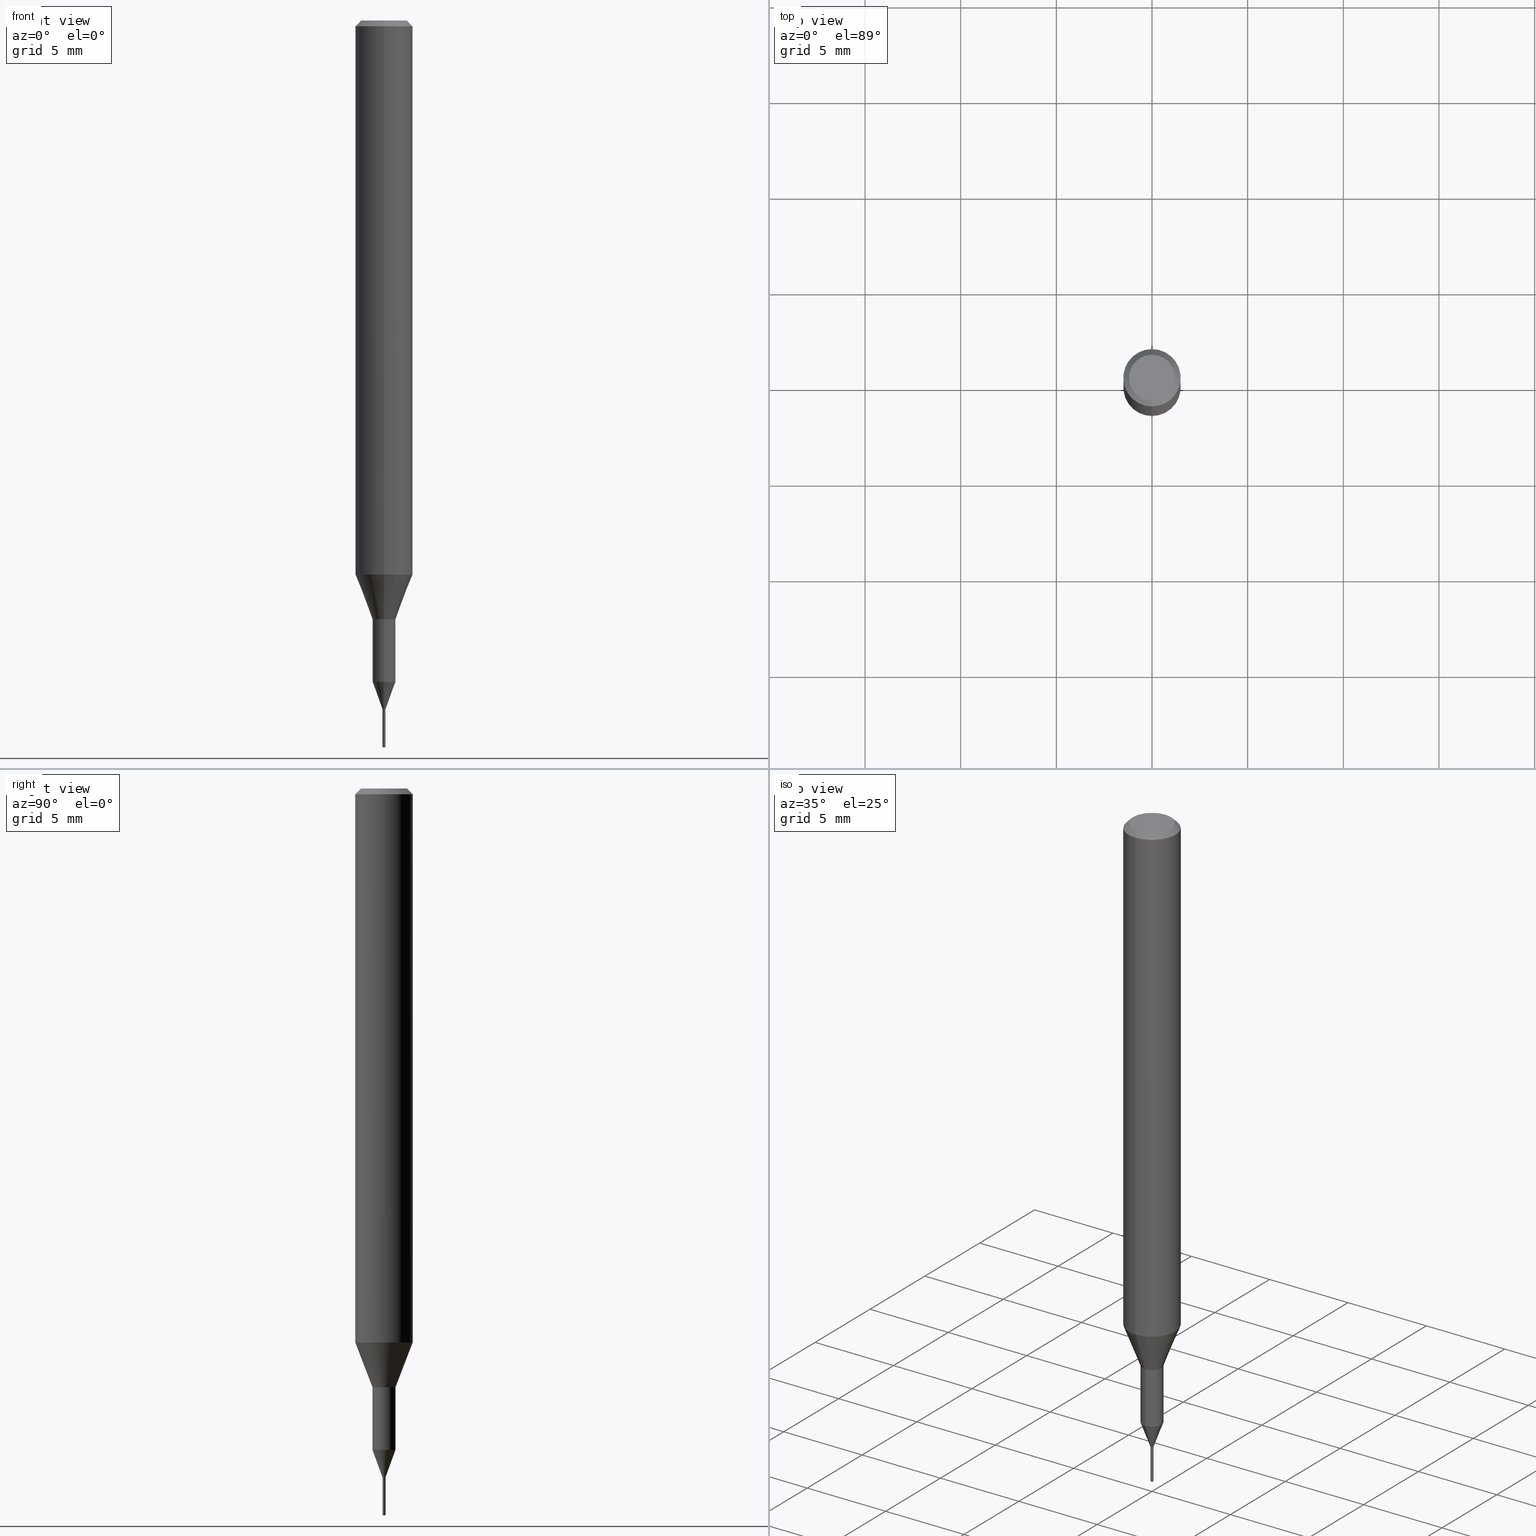
[diagram: canonical four-view strip — front | top / right | iso, engineering-drawing reading convention]
A machine part, canonical four-view strip (front | top / right | iso — engineering-drawing reading convention). The complete STEP part file that produces these views, byte-faithful:
ISO-10303-21;
HEADER;
FILE_DESCRIPTION(('no description'),'unknown implementation level');
FILE_NAME('C-UMD2016-020-Huellk.stp','  ',('CIMSOURCE GmbH'),('CADClick - KiM GmbH - www.kimweb.de'),'unknown preprocess','ACIS','unknown authorization');
FILE_SCHEMA(('automotive_design'));
ENDSEC;
DATA;
#1=MECHANICAL_DESIGN_GEOMETRIC_PRESENTATION_REPRESENTATION(' ',(#14,#15,#16,#17,#18,#19,#20,#21,#22,#23,#24,#25,#26,#27,#28,#29,#30,#31,#32,#33,#34,#35,#36,#37,#38,#39,#40,#41,#42,#43,#44,#45,#46,#47,#48,#49,#50,#51,#52,#53,#54,#55,#56,#57,#58,#59,#60,#61,#62,#63,#64,#65,#66,#67,#68,#69,#70,#71,#72,#73,#74,#75,#76,#77,#78,#79,#80,#81,#82,#83,#84,#85,#86,#87,#88,#89,#90,#91,#92),#10);
#2=PRODUCT_DEFINITION_CONTEXT('',#93,'design');
#3=APPLICATION_PROTOCOL_DEFINITION('INTERNATIONAL STANDARD','automotive_design',1994,#93);
#4=PRODUCT_CATEGORY_RELATIONSHIP('NONE','NONE',#94,#95);
#5=SHAPE_DEFINITION_REPRESENTATION(#96,#97);
#6=PRODUCT_DEFINITION_CONTEXT('',#98,'design');
#7=APPLICATION_PROTOCOL_DEFINITION('INTERNATIONAL STANDARD','automotive_design',1994,#98);
#8=PRODUCT_CATEGORY_RELATIONSHIP('NONE','NONE',#99,#100);
#9=SHAPE_DEFINITION_REPRESENTATION(#101,#102);
#10= (GEOMETRIC_REPRESENTATION_CONTEXT(3)GLOBAL_UNCERTAINTY_ASSIGNED_CONTEXT((#105))GLOBAL_UNIT_ASSIGNED_CONTEXT((#107,#108,#109))REPRESENTATION_CONTEXT('NONE','WORKSPACE'));
#14=STYLED_ITEM('',(#111),#112);
#15=STYLED_ITEM('',(#113),#114);
#16=STYLED_ITEM('',(#115),#116);
#17=STYLED_ITEM('',(#117),#118);
#18=STYLED_ITEM('',(#119),#120);
#19=STYLED_ITEM('',(#121),#122);
#20=STYLED_ITEM('',(#123),#124);
#21=STYLED_ITEM('',(#125),#126);
#22=STYLED_ITEM('',(#127),#128);
#23=STYLED_ITEM('',(#129),#130);
#24=STYLED_ITEM('',(#131),#132);
#25=STYLED_ITEM('',(#133),#134);
#26=STYLED_ITEM('',(#135),#136);
#27=STYLED_ITEM('',(#137),#138);
#28=STYLED_ITEM('',(#139),#140);
#29=STYLED_ITEM('',(#141),#142);
#30=STYLED_ITEM('',(#143),#144);
#31=STYLED_ITEM('',(#145),#146);
#32=STYLED_ITEM('',(#147),#148);
#33=STYLED_ITEM('',(#149),#150);
#34=STYLED_ITEM('',(#151),#152);
#35=STYLED_ITEM('',(#153),#154);
#36=STYLED_ITEM('',(#155),#156);
#37=STYLED_ITEM('',(#157),#158);
#38=STYLED_ITEM('',(#159),#160);
#39=STYLED_ITEM('',(#161),#162);
#40=STYLED_ITEM('',(#163),#164);
#41=STYLED_ITEM('',(#165),#166);
#42=STYLED_ITEM('',(#167),#168);
#43=STYLED_ITEM('',(#169),#170);
#44=STYLED_ITEM('',(#171),#172);
#45=STYLED_ITEM('',(#173),#174);
#46=STYLED_ITEM('',(#175),#176);
#47=STYLED_ITEM('',(#177),#178);
#48=STYLED_ITEM('',(#179),#180);
#49=STYLED_ITEM('',(#181),#182);
#50=STYLED_ITEM('',(#183),#184);
#51=STYLED_ITEM('',(#185),#186);
#52=STYLED_ITEM('',(#187),#188);
#53=STYLED_ITEM('',(#189),#190);
#54=STYLED_ITEM('',(#191),#192);
#55=STYLED_ITEM('',(#193),#194);
#56=STYLED_ITEM('',(#195),#196);
#57=STYLED_ITEM('',(#197),#198);
#58=STYLED_ITEM('',(#199),#200);
#59=STYLED_ITEM('',(#201),#202);
#60=STYLED_ITEM('',(#203),#204);
#61=STYLED_ITEM('',(#205),#206);
#62=STYLED_ITEM('',(#207),#208);
#63=STYLED_ITEM('',(#209),#210);
#64=STYLED_ITEM('',(#211),#212);
#65=STYLED_ITEM('',(#213),#214);
#66=STYLED_ITEM('',(#215),#216);
#67=STYLED_ITEM('',(#217),#218);
#68=STYLED_ITEM('',(#219),#220);
#69=STYLED_ITEM('',(#221),#222);
#70=STYLED_ITEM('',(#223),#224);
#71=STYLED_ITEM('',(#225),#226);
#72=STYLED_ITEM('',(#227),#228);
#73=STYLED_ITEM('',(#229),#230);
#74=STYLED_ITEM('',(#231),#232);
#75=STYLED_ITEM('',(#233),#234);
#76=STYLED_ITEM('',(#235),#236);
#77=STYLED_ITEM('',(#237),#238);
#78=STYLED_ITEM('',(#239),#240);
#79=STYLED_ITEM('',(#241),#242);
#80=STYLED_ITEM('',(#243),#244);
#81=STYLED_ITEM('',(#245),#246);
#82=STYLED_ITEM('',(#247),#248);
#83=STYLED_ITEM('',(#249),#250);
#84=STYLED_ITEM('',(#251),#252);
#85=STYLED_ITEM('',(#253),#254);
#86=STYLED_ITEM('',(#255),#256);
#87=STYLED_ITEM('',(#257),#258);
#88=STYLED_ITEM('',(#259),#260);
#89=STYLED_ITEM('',(#261),#262);
#90=STYLED_ITEM('',(#263),#264);
#91=STYLED_ITEM('',(#265),#266);
#92=STYLED_ITEM('',(#267),#268);
#93=APPLICATION_CONTEXT(' ');
#94=PRODUCT_CATEGORY('part','NONE');
#95=PRODUCT_RELATED_PRODUCT_CATEGORY('detail',' ',(#269));
#96=PRODUCT_DEFINITION_SHAPE('NONE','NONE',#270);
#97=ADVANCED_BREP_SHAPE_REPRESENTATION('1',(#158,#271),#10);
#98=APPLICATION_CONTEXT(' ');
#99=PRODUCT_CATEGORY('part','NONE');
#100=PRODUCT_RELATED_PRODUCT_CATEGORY('detail',' ',(#272));
#101=PRODUCT_DEFINITION_SHAPE('NONE','NONE',#273);
#102=ADVANCED_BREP_SHAPE_REPRESENTATION('2',(#242,#274),#10);
#105=UNCERTAINTY_MEASURE_WITH_UNIT(LENGTH_MEASURE(1.0E-006),#107,'','');
#107= (CONVERSION_BASED_UNIT('MILLIMETRE',#277)LENGTH_UNIT()NAMED_UNIT(#280));
#108= (NAMED_UNIT(#282)PLANE_ANGLE_UNIT()SI_UNIT($,.RADIAN.));
#109= (NAMED_UNIT(#282)SOLID_ANGLE_UNIT()SI_UNIT($,.STERADIAN.));
#111=PRESENTATION_STYLE_ASSIGNMENT((#288));
#112=ADVANCED_FACE('',(#289),#290,.T.);
#113=PRESENTATION_STYLE_ASSIGNMENT((#291));
#114=ADVANCED_FACE('',(#292),#293,.T.);
#115=PRESENTATION_STYLE_ASSIGNMENT((#294));
#116=EDGE_CURVE('',#192,#190,#295,.T.);
#117=PRESENTATION_STYLE_ASSIGNMENT((#296));
#118=ADVANCED_FACE('',(#297),#298,.T.);
#119=PRESENTATION_STYLE_ASSIGNMENT((#299));
#120=ADVANCED_FACE('',(#300),#301,.T.);
#121=PRESENTATION_STYLE_ASSIGNMENT((#302));
#122=EDGE_CURVE('',#226,#192,#303,.T.);
#123=PRESENTATION_STYLE_ASSIGNMENT((#304));
#124=EDGE_CURVE('',#170,#248,#305,.T.);
#125=PRESENTATION_STYLE_ASSIGNMENT((#306));
#126=VERTEX_POINT('',#307);
#127=PRESENTATION_STYLE_ASSIGNMENT((#308));
#128=VERTEX_POINT('',#309);
#129=PRESENTATION_STYLE_ASSIGNMENT((#310));
#130=EDGE_CURVE('',#170,#268,#311,.T.);
#131=PRESENTATION_STYLE_ASSIGNMENT((#312));
#132=EDGE_CURVE('',#250,#190,#313,.T.);
#133=PRESENTATION_STYLE_ASSIGNMENT((#314));
#134=VERTEX_POINT('',#315);
#135=PRESENTATION_STYLE_ASSIGNMENT((#316));
#136=ADVANCED_FACE('',(#317),#318,.T.);
#137=PRESENTATION_STYLE_ASSIGNMENT((#319));
#138=VERTEX_POINT('',#320);
#139=PRESENTATION_STYLE_ASSIGNMENT((#321));
#140=VERTEX_POINT('',#322);
#141=PRESENTATION_STYLE_ASSIGNMENT((#323));
#142=ADVANCED_FACE('',(#324),#325,.T.);
#143=PRESENTATION_STYLE_ASSIGNMENT((#326));
#144=EDGE_CURVE('',#252,#232,#327,.T.);
#145=PRESENTATION_STYLE_ASSIGNMENT((#328));
#146=EDGE_CURVE('',#182,#218,#329,.T.);
#147=PRESENTATION_STYLE_ASSIGNMENT((#330));
#148=EDGE_CURVE('',#134,#138,#331,.T.);
#149=PRESENTATION_STYLE_ASSIGNMENT((#332));
#150=EDGE_CURVE('',#140,#218,#333,.T.);
#151=PRESENTATION_STYLE_ASSIGNMENT((#334));
#152=EDGE_CURVE('',#232,#252,#335,.T.);
#153=PRESENTATION_STYLE_ASSIGNMENT((#336));
#154=EDGE_CURVE('',#252,#140,#337,.T.);
#155=PRESENTATION_STYLE_ASSIGNMENT((#338));
#156=ADVANCED_FACE('',(#339),#340,.T.);
#157=PRESENTATION_STYLE_ASSIGNMENT((#341));
#158=MANIFOLD_SOLID_BREP('1',#342);
#159=PRESENTATION_STYLE_ASSIGNMENT((#343));
#160=ADVANCED_FACE('',(#344),#345,.T.);
#161=PRESENTATION_STYLE_ASSIGNMENT((#346));
#162=ADVANCED_FACE('',(#347),#348,.T.);
#163=PRESENTATION_STYLE_ASSIGNMENT((#349));
#164=EDGE_CURVE('',#190,#192,#350,.T.);
#165=PRESENTATION_STYLE_ASSIGNMENT((#351));
#166=EDGE_CURVE('',#126,#250,#352,.T.);
#167=PRESENTATION_STYLE_ASSIGNMENT((#353));
#168=EDGE_CURVE('',#224,#254,#354,.T.);
#169=PRESENTATION_STYLE_ASSIGNMENT((#355));
#170=VERTEX_POINT('',#356);
#171=PRESENTATION_STYLE_ASSIGNMENT((#357));
#172=EDGE_CURVE('',#182,#262,#358,.T.);
#173=PRESENTATION_STYLE_ASSIGNMENT((#359));
#174=EDGE_CURVE('',#254,#252,#360,.T.);
#175=PRESENTATION_STYLE_ASSIGNMENT((#361));
#176=EDGE_CURVE('',#238,#134,#362,.T.);
#177=PRESENTATION_STYLE_ASSIGNMENT((#363));
#178=VERTEX_POINT('',#364);
#179=PRESENTATION_STYLE_ASSIGNMENT((#365));
#180=EDGE_CURVE('',#254,#224,#366,.T.);
#181=PRESENTATION_STYLE_ASSIGNMENT((#367));
#182=VERTEX_POINT('',#368);
#183=PRESENTATION_STYLE_ASSIGNMENT((#369));
#184=EDGE_CURVE('',#178,#226,#370,.T.);
#185=PRESENTATION_STYLE_ASSIGNMENT((#371));
#186=ADVANCED_FACE('',(#372),#373,.T.);
#187=PRESENTATION_STYLE_ASSIGNMENT((#374));
#188=ADVANCED_FACE('',(#375,#376),#377,.T.);
#189=PRESENTATION_STYLE_ASSIGNMENT((#378));
#190=VERTEX_POINT('',#379);
#191=PRESENTATION_STYLE_ASSIGNMENT((#380));
#192=VERTEX_POINT('',#381);
#193=PRESENTATION_STYLE_ASSIGNMENT((#382));
#194=ADVANCED_FACE('',(#383),#384,.T.);
#195=PRESENTATION_STYLE_ASSIGNMENT((#385));
#196=ADVANCED_FACE('',(#386),#387,.T.);
#197=PRESENTATION_STYLE_ASSIGNMENT((#388));
#198=EDGE_CURVE('',#262,#182,#389,.T.);
#199=PRESENTATION_STYLE_ASSIGNMENT((#390));
#200=EDGE_CURVE('',#138,#238,#391,.T.);
#201=PRESENTATION_STYLE_ASSIGNMENT((#392));
#202=ADVANCED_FACE('',(#393),#394,.T.);
#203=PRESENTATION_STYLE_ASSIGNMENT((#395));
#204=EDGE_CURVE('',#218,#140,#396,.T.);
#205=PRESENTATION_STYLE_ASSIGNMENT((#397));
#206=EDGE_CURVE('',#140,#262,#398,.T.);
#207=PRESENTATION_STYLE_ASSIGNMENT((#399));
#208=EDGE_CURVE('',#226,#178,#400,.T.);
#209=PRESENTATION_STYLE_ASSIGNMENT((#401));
#210=ADVANCED_FACE('',(#402),#403,.T.);
#211=PRESENTATION_STYLE_ASSIGNMENT((#404));
#212=EDGE_CURVE('',#128,#268,#405,.T.);
#213=PRESENTATION_STYLE_ASSIGNMENT((#406));
#214=EDGE_CURVE('',#250,#126,#407,.T.);
#215=PRESENTATION_STYLE_ASSIGNMENT((#408));
#216=EDGE_CURVE('',#128,#248,#409,.T.);
#217=PRESENTATION_STYLE_ASSIGNMENT((#410));
#218=VERTEX_POINT('',#411);
#219=PRESENTATION_STYLE_ASSIGNMENT((#412));
#220=EDGE_CURVE('',#248,#138,#413,.T.);
#221=PRESENTATION_STYLE_ASSIGNMENT((#414));
#222=EDGE_CURVE('',#134,#128,#415,.T.);
#223=PRESENTATION_STYLE_ASSIGNMENT((#416));
#224=VERTEX_POINT('',#417);
#225=PRESENTATION_STYLE_ASSIGNMENT((#418));
#226=VERTEX_POINT('',#419);
#227=PRESENTATION_STYLE_ASSIGNMENT((#420));
#228=ADVANCED_FACE('',(#421),#422,.T.);
#229=PRESENTATION_STYLE_ASSIGNMENT((#423));
#230=EDGE_CURVE('',#190,#178,#424,.T.);
#231=PRESENTATION_STYLE_ASSIGNMENT((#425));
#232=VERTEX_POINT('',#426);
#233=PRESENTATION_STYLE_ASSIGNMENT((#427));
#234=EDGE_CURVE('',#232,#224,#428,.T.);
#235=PRESENTATION_STYLE_ASSIGNMENT((#429));
#236=ADVANCED_FACE('',(#430),#431,.T.);
#237=PRESENTATION_STYLE_ASSIGNMENT((#432));
#238=VERTEX_POINT('',#433);
#239=PRESENTATION_STYLE_ASSIGNMENT((#434));
#240=EDGE_CURVE('',#138,#134,#435,.T.);
#241=PRESENTATION_STYLE_ASSIGNMENT((#436));
#242=MANIFOLD_SOLID_BREP('2',#437);
#243=PRESENTATION_STYLE_ASSIGNMENT((#438));
#244=EDGE_CURVE('',#248,#128,#439,.T.);
#245=PRESENTATION_STYLE_ASSIGNMENT((#440));
#246=EDGE_CURVE('',#192,#126,#441,.T.);
#247=PRESENTATION_STYLE_ASSIGNMENT((#442));
#248=VERTEX_POINT('',#443);
#249=PRESENTATION_STYLE_ASSIGNMENT((#444));
#250=VERTEX_POINT('',#445);
#251=PRESENTATION_STYLE_ASSIGNMENT((#446));
#252=VERTEX_POINT('',#447);
#253=PRESENTATION_STYLE_ASSIGNMENT((#448));
#254=VERTEX_POINT('',#449);
#255=PRESENTATION_STYLE_ASSIGNMENT((#450));
#256=ADVANCED_FACE('',(#451),#452,.T.);
#257=PRESENTATION_STYLE_ASSIGNMENT((#453));
#258=EDGE_CURVE('',#268,#170,#454,.T.);
#259=PRESENTATION_STYLE_ASSIGNMENT((#455));
#260=ADVANCED_FACE('',(#456),#457,.T.);
#261=PRESENTATION_STYLE_ASSIGNMENT((#458));
#262=VERTEX_POINT('',#459);
#263=PRESENTATION_STYLE_ASSIGNMENT((#460));
#264=ADVANCED_FACE('',(#461),#462,.T.);
#265=PRESENTATION_STYLE_ASSIGNMENT((#463));
#266=EDGE_CURVE('',#218,#232,#464,.T.);
#267=PRESENTATION_STYLE_ASSIGNMENT((#465));
#268=VERTEX_POINT('',#466);
#269=PRODUCT('1','1','PART-1-DESC',(#467));
#270=PRODUCT_DEFINITION('NONE','NONE',#468,#2);
#271=AXIS2_PLACEMENT_3D('',#469,#470,#471);
#272=PRODUCT('2','2','PART-2-DESC',(#472));
#273=PRODUCT_DEFINITION('NONE','NONE',#473,#6);
#274=AXIS2_PLACEMENT_3D('',#474,#475,#476);
#277=LENGTH_MEASURE_WITH_UNIT(LENGTH_MEASURE(1.0),#477);
#280=DIMENSIONAL_EXPONENTS(1.0,0.0,0.0,0.0,0.0,0.0,0.0);
#282=DIMENSIONAL_EXPONENTS(0.0,0.0,0.0,0.0,0.0,0.0,0.0);
#288=SURFACE_STYLE_USAGE(.BOTH.,#478);
#289=FACE_OUTER_BOUND('',#479,.T.);
#290=PLANE('',#480);
#291=SURFACE_STYLE_USAGE(.BOTH.,#481);
#292=FACE_OUTER_BOUND('',#482,.T.);
#293=CONICAL_SURFACE('',#483,0.04,1.30899688528326);
#294=CURVE_STYLE('',#484,POSITIVE_LENGTH_MEASURE(1.0E-006),#485);
#295=CIRCLE('',#486,0.59995);
#296=SURFACE_STYLE_USAGE(.BOTH.,#487);
#297=FACE_OUTER_BOUND('',#488,.T.);
#298=CONICAL_SURFACE('',#489,1.05,0.366459241971866);
#299=SURFACE_STYLE_USAGE(.BOTH.,#490);
#300=FACE_OUTER_BOUND('',#491,.T.);
#301=CYLINDRICAL_SURFACE('',#492,1.5);
#302=CURVE_STYLE('',#493,POSITIVE_LENGTH_MEASURE(1.0E-006),#494);
#303=LINE('',#495,#496);
#304=CURVE_STYLE('',#497,POSITIVE_LENGTH_MEASURE(1.0E-006),#498);
#305=LINE('',#499,#500);
#306=POINT_STYLE(' ',#501,POSITIVE_LENGTH_MEASURE(1.0E-006),#502);
#307=CARTESIAN_POINT('',(7.34702581975735E-017,-0.59995,-31.3));
#308=POINT_STYLE(' ',#503,POSITIVE_LENGTH_MEASURE(1.0E-006),#504);
#309=CARTESIAN_POINT('',(0.08,9.79685083057902E-018,-36.0));
#310=CURVE_STYLE('',#505,POSITIVE_LENGTH_MEASURE(1.0E-006),#506);
#311=CIRCLE('',#507,0.0810363890832749);
#312=CURVE_STYLE('',#508,POSITIVE_LENGTH_MEASURE(1.0E-006),#509);
#313=LINE('',#510,#511);
#314=POINT_STYLE(' ',#512,POSITIVE_LENGTH_MEASURE(1.0E-006),#513);
#315=CARTESIAN_POINT('',(0.08,9.79685083057902E-018,-37.97856406));
#316=SURFACE_STYLE_USAGE(.BOTH.,#514);
#317=FACE_OUTER_BOUND('',#515,.T.);
#318=CYLINDRICAL_SURFACE('',#516,0.08);
#319=POINT_STYLE(' ',#517,POSITIVE_LENGTH_MEASURE(1.0E-006),#518);
#320=CARTESIAN_POINT('',(-0.08,0.0,-37.97856406));
#321=POINT_STYLE(' ',#519,POSITIVE_LENGTH_MEASURE(1.0E-006),#520);
#322=CARTESIAN_POINT('',(0.0,1.5,-28.955));
#323=SURFACE_STYLE_USAGE(.BOTH.,#521);
#324=FACE_OUTER_BOUND('',#522,.T.);
#325=CONICAL_SURFACE('',#523,0.339993192792162,0.348964836873611);
#326=CURVE_STYLE('',#524,POSITIVE_LENGTH_MEASURE(1.0E-006),#525);
#327=CIRCLE('',#526,1.5);
#328=CURVE_STYLE('',#527,POSITIVE_LENGTH_MEASURE(1.0E-006),#528);
#329=LINE('',#529,#530);
#330=CURVE_STYLE('',#531,POSITIVE_LENGTH_MEASURE(1.0E-006),#532);
#331=CIRCLE('',#533,0.08);
#332=CURVE_STYLE('',#534,POSITIVE_LENGTH_MEASURE(1.0E-006),#535);
#333=CIRCLE('',#536,1.5);
#334=CURVE_STYLE('',#537,POSITIVE_LENGTH_MEASURE(1.0E-006),#538);
#335=CIRCLE('',#539,1.5);
#336=CURVE_STYLE('',#540,POSITIVE_LENGTH_MEASURE(1.0E-006),#541);
#337=LINE('',#542,#543);
#338=SURFACE_STYLE_USAGE(.BOTH.,#544);
#339=FACE_OUTER_BOUND('',#545,.T.);
#340=CONICAL_SURFACE('',#546,0.04,1.30899688528326);
#341=SURFACE_STYLE_USAGE(.BOTH.,#547);
#342=CLOSED_SHELL('',(#142,#210,#118,#120,#160,#112,#186,#260,#196,#188,#162,#228,#264));
#343=SURFACE_STYLE_USAGE(.BOTH.,#548);
#344=FACE_OUTER_BOUND('',#549,.T.);
#345=CONICAL_SURFACE('',#550,1.35,0.785398163397447);
#346=SURFACE_STYLE_USAGE(.BOTH.,#551);
#347=FACE_OUTER_BOUND('',#552,.T.);
#348=CYLINDRICAL_SURFACE('',#553,0.59995);
#349=CURVE_STYLE('',#554,POSITIVE_LENGTH_MEASURE(1.0E-006),#555);
#350=CIRCLE('',#556,0.59995);
#351=CURVE_STYLE('',#557,POSITIVE_LENGTH_MEASURE(1.0E-006),#558);
#352=CIRCLE('',#559,0.59995);
#353=CURVE_STYLE('',#560,POSITIVE_LENGTH_MEASURE(1.0E-006),#561);
#354=CIRCLE('',#562,1.2);
#355=POINT_STYLE(' ',#563,POSITIVE_LENGTH_MEASURE(1.0E-006),#564);
#356=CARTESIAN_POINT('',(-0.0810363890832749,0.0,-35.9999));
#357=CURVE_STYLE('',#565,POSITIVE_LENGTH_MEASURE(1.0E-006),#566);
#358=CIRCLE('',#567,0.6);
#359=CURVE_STYLE('',#568,POSITIVE_LENGTH_MEASURE(1.0E-006),#569);
#360=LINE('',#570,#571);
#361=CURVE_STYLE('',#572,POSITIVE_LENGTH_MEASURE(1.0E-006),#573);
#362=LINE('',#574,#575);
#363=POINT_STYLE(' ',#576,POSITIVE_LENGTH_MEASURE(1.0E-006),#577);
#364=CARTESIAN_POINT('',(0.0,0.0800363855843246,-35.9999));
#365=CURVE_STYLE('',#578,POSITIVE_LENGTH_MEASURE(1.0E-006),#579);
#366=CIRCLE('',#580,1.2);
#367=POINT_STYLE(' ',#581,POSITIVE_LENGTH_MEASURE(1.0E-006),#582);
#368=CARTESIAN_POINT('',(7.34763812293426E-017,-0.6,-31.3));
#369=CURVE_STYLE('',#583,POSITIVE_LENGTH_MEASURE(1.0E-006),#584);
#370=CIRCLE('',#585,0.0800363855843246);
#371=SURFACE_STYLE_USAGE(.BOTH.,#586);
#372=FACE_OUTER_BOUND('',#587,.T.);
#373=CONICAL_SURFACE('',#588,1.35,0.785398163397447);
#374=SURFACE_STYLE_USAGE(.BOTH.,#589);
#375=FACE_BOUND('',#590,.T.);
#376=FACE_OUTER_BOUND('',#591,.T.);
#377=PLANE('',#592);
#378=POINT_STYLE(' ',#593,POSITIVE_LENGTH_MEASURE(1.0E-006),#594);
#379=CARTESIAN_POINT('',(0.0,0.59995,-34.571));
#380=POINT_STYLE(' ',#595,POSITIVE_LENGTH_MEASURE(1.0E-006),#596);
#381=CARTESIAN_POINT('',(7.34702581975735E-017,-0.59995,-34.571));
#382=SURFACE_STYLE_USAGE(.BOTH.,#597);
#383=FACE_OUTER_BOUND('',#598,.T.);
#384=CYLINDRICAL_SURFACE('',#599,0.08);
#385=SURFACE_STYLE_USAGE(.BOTH.,#600);
#386=FACE_OUTER_BOUND('',#601,.T.);
#387=CONICAL_SURFACE('',#602,1.05,0.366459241971866);
#388=CURVE_STYLE('',#603,POSITIVE_LENGTH_MEASURE(1.0E-006),#604);
#389=CIRCLE('',#605,0.6);
#390=CURVE_STYLE('',#606,POSITIVE_LENGTH_MEASURE(1.0E-006),#607);
#391=LINE('',#608,#609);
#392=SURFACE_STYLE_USAGE(.BOTH.,#610);
#393=FACE_OUTER_BOUND('',#611,.T.);
#394=CONICAL_SURFACE('',#612,0.0805181945416374,1.4746052465728);
#395=CURVE_STYLE('',#613,POSITIVE_LENGTH_MEASURE(1.0E-006),#614);
#396=CIRCLE('',#615,1.5);
#397=CURVE_STYLE('',#616,POSITIVE_LENGTH_MEASURE(1.0E-006),#617);
#398=LINE('',#618,#619);
#399=CURVE_STYLE('',#620,POSITIVE_LENGTH_MEASURE(1.0E-006),#621);
#400=CIRCLE('',#622,0.0800363855843246);
#401=SURFACE_STYLE_USAGE(.BOTH.,#623);
#402=FACE_OUTER_BOUND('',#624,.T.);
#403=CYLINDRICAL_SURFACE('',#625,0.59995);
#404=CURVE_STYLE('',#626,POSITIVE_LENGTH_MEASURE(1.0E-006),#627);
#405=LINE('',#628,#629);
#406=CURVE_STYLE('',#630,POSITIVE_LENGTH_MEASURE(1.0E-006),#631);
#407=CIRCLE('',#632,0.59995);
#408=CURVE_STYLE('',#633,POSITIVE_LENGTH_MEASURE(1.0E-006),#634);
#409=CIRCLE('',#635,0.08);
#410=POINT_STYLE(' ',#636,POSITIVE_LENGTH_MEASURE(1.0E-006),#637);
#411=CARTESIAN_POINT('',(1.83690953073357E-016,-1.5,-28.955));
#412=CURVE_STYLE('',#638,POSITIVE_LENGTH_MEASURE(1.0E-006),#639);
#413=LINE('',#640,#641);
#414=CURVE_STYLE('',#642,POSITIVE_LENGTH_MEASURE(1.0E-006),#643);
#415=LINE('',#644,#645);
#416=POINT_STYLE(' ',#646,POSITIVE_LENGTH_MEASURE(1.0E-006),#647);
#417=CARTESIAN_POINT('',(1.46952762458685E-016,-1.2,0.0));
#418=POINT_STYLE(' ',#648,POSITIVE_LENGTH_MEASURE(1.0E-006),#649);
#419=CARTESIAN_POINT('',(9.80130663235416E-018,-0.0800363855843246,-35.9999));
#420=SURFACE_STYLE_USAGE(.BOTH.,#650);
#421=FACE_OUTER_BOUND('',#651,.T.);
#422=CONICAL_SURFACE('',#652,0.339993192792162,0.348964836873611);
#423=CURVE_STYLE('',#653,POSITIVE_LENGTH_MEASURE(1.0E-006),#654);
#424=LINE('',#655,#656);
#425=POINT_STYLE(' ',#657,POSITIVE_LENGTH_MEASURE(1.0E-006),#658);
#426=CARTESIAN_POINT('',(1.83690953073357E-016,-1.5,-0.300000000000001));
#427=CURVE_STYLE('',#659,POSITIVE_LENGTH_MEASURE(1.0E-006),#660);
#428=LINE('',#661,#662);
#429=SURFACE_STYLE_USAGE(.BOTH.,#663);
#430=FACE_OUTER_BOUND('',#664,.T.);
#431=PLANE('',#665);
#432=POINT_STYLE(' ',#666,POSITIVE_LENGTH_MEASURE(1.0E-006),#667);
#433=CARTESIAN_POINT('',(0.0,0.0,-38.0));
#434=CURVE_STYLE('',#668,POSITIVE_LENGTH_MEASURE(1.0E-006),#669);
#435=CIRCLE('',#670,0.08);
#436=SURFACE_STYLE_USAGE(.BOTH.,#671);
#437=CLOSED_SHELL('',(#156,#194,#256,#236,#202,#136,#114));
#438=CURVE_STYLE('',#672,POSITIVE_LENGTH_MEASURE(1.0E-006),#673);
#439=CIRCLE('',#674,0.08);
#440=CURVE_STYLE('',#675,POSITIVE_LENGTH_MEASURE(1.0E-006),#676);
#441=LINE('',#677,#678);
#442=POINT_STYLE(' ',#679,POSITIVE_LENGTH_MEASURE(1.0E-006),#680);
#443=CARTESIAN_POINT('',(-0.08,0.0,-36.0));
#444=POINT_STYLE(' ',#681,POSITIVE_LENGTH_MEASURE(1.0E-006),#682);
#445=CARTESIAN_POINT('',(0.0,0.59995,-31.3));
#446=POINT_STYLE(' ',#683,POSITIVE_LENGTH_MEASURE(1.0E-006),#684);
#447=CARTESIAN_POINT('',(0.0,1.5,-0.300000000000001));
#448=POINT_STYLE(' ',#685,POSITIVE_LENGTH_MEASURE(1.0E-006),#686);
#449=CARTESIAN_POINT('',(0.0,1.2,0.0));
#450=SURFACE_STYLE_USAGE(.BOTH.,#687);
#451=FACE_OUTER_BOUND('',#688,.T.);
#452=CONICAL_SURFACE('',#689,0.0805181945416374,1.4746052465728);
#453=CURVE_STYLE('',#690,POSITIVE_LENGTH_MEASURE(1.0E-006),#691);
#454=CIRCLE('',#692,0.0810363890832749);
#455=SURFACE_STYLE_USAGE(.BOTH.,#693);
#456=FACE_OUTER_BOUND('',#694,.T.);
#457=CYLINDRICAL_SURFACE('',#695,1.5);
#458=POINT_STYLE(' ',#696,POSITIVE_LENGTH_MEASURE(1.0E-006),#697);
#459=CARTESIAN_POINT('',(0.0,0.6,-31.3));
#460=SURFACE_STYLE_USAGE(.BOTH.,#698);
#461=FACE_OUTER_BOUND('',#699,.T.);
#462=PLANE('',#700);
#463=CURVE_STYLE('',#701,POSITIVE_LENGTH_MEASURE(1.0E-006),#702);
#464=LINE('',#703,#704);
#465=POINT_STYLE(' ',#705,POSITIVE_LENGTH_MEASURE(1.0E-006),#706);
#466=CARTESIAN_POINT('',(0.0810363890832749,9.92376769622008E-018,-35.9999));
#467=PRODUCT_CONTEXT('',#93,'mechanical');
#468=PRODUCT_DEFINITION_FORMATION_WITH_SPECIFIED_SOURCE(' ','NONE',#269,.NOT_KNOWN.);
#469=CARTESIAN_POINT('',(0.0,0.0,0.0));
#470=DIRECTION('',(0.0,0.0,1.0));
#471=DIRECTION('',(1.0,0.0,0.0));
#472=PRODUCT_CONTEXT('',#98,'mechanical');
#473=PRODUCT_DEFINITION_FORMATION_WITH_SPECIFIED_SOURCE(' ','NONE',#272,.NOT_KNOWN.);
#474=CARTESIAN_POINT('',(0.0,0.0,0.0));
#475=DIRECTION('',(0.0,0.0,1.0));
#476=DIRECTION('',(1.0,0.0,0.0));
#477= (NAMED_UNIT(#280)LENGTH_UNIT()SI_UNIT(.MILLI.,.METRE.));
#478=SURFACE_SIDE_STYLE('',(#708));
#479=EDGE_LOOP('',(#709,#710));
#480=AXIS2_PLACEMENT_3D('',#711,#712,#713);
#481=SURFACE_SIDE_STYLE('',(#714));
#482=EDGE_LOOP('',(#715,#716,#717));
#483=AXIS2_PLACEMENT_3D('',#718,#719,#720);
#484=DRAUGHTING_PRE_DEFINED_CURVE_FONT('continuous');
#485=COLOUR_RGB('',0.498039215803146,0.498039215803146,0.498039215803146);
#486=AXIS2_PLACEMENT_3D('',#721,#722,#723);
#487=SURFACE_SIDE_STYLE('',(#724));
#488=EDGE_LOOP('',(#725,#726,#727,#728));
#489=AXIS2_PLACEMENT_3D('',#729,#730,#731);
#490=SURFACE_SIDE_STYLE('',(#732));
#491=EDGE_LOOP('',(#733,#734,#735,#736));
#492=AXIS2_PLACEMENT_3D('',#737,#738,#739);
#493=DRAUGHTING_PRE_DEFINED_CURVE_FONT('continuous');
#494=COLOUR_RGB('',0.498039215803146,0.498039215803146,0.498039215803146);
#495=CARTESIAN_POINT('',(4.16357824149638E-017,-0.339993192792162,-35.28545));
#496=VECTOR('',#740,1.0);
#497=DRAUGHTING_PRE_DEFINED_CURVE_FONT('continuous');
#498=COLOUR_RGB('',0.800000011920929,0.800000011920929,0.800000011920929);
#499=CARTESIAN_POINT('',(-0.0805181945416374,-9.86030926339955E-018,-35.99995));
#500=VECTOR('',#741,1.0);
#501=PRE_DEFINED_MARKER('');
#502=COLOUR_RGB('',0.498039215803146,0.498039215803146,0.498039215803146);
#503=PRE_DEFINED_MARKER('');
#504=COLOUR_RGB('',0.800000011920929,0.800000011920929,0.800000011920929);
#505=DRAUGHTING_PRE_DEFINED_CURVE_FONT('continuous');
#506=COLOUR_RGB('',0.800000011920929,0.800000011920929,0.800000011920929);
#507=AXIS2_PLACEMENT_3D('',#742,#743,#744);
#508=DRAUGHTING_PRE_DEFINED_CURVE_FONT('continuous');
#509=COLOUR_RGB('',0.498039215803146,0.498039215803146,0.498039215803146);
#510=CARTESIAN_POINT('',(-7.34702581975735E-017,0.59995,-32.9355));
#511=VECTOR('',#745,1.0);
#512=PRE_DEFINED_MARKER('');
#513=COLOUR_RGB('',0.800000011920929,0.800000011920929,0.800000011920929);
#514=SURFACE_SIDE_STYLE('',(#746));
#515=EDGE_LOOP('',(#747,#748,#749,#750));
#516=AXIS2_PLACEMENT_3D('',#751,#752,#753);
#517=PRE_DEFINED_MARKER('');
#518=COLOUR_RGB('',0.800000011920929,0.800000011920929,0.800000011920929);
#519=PRE_DEFINED_MARKER('');
#520=COLOUR_RGB('',0.498039215803146,0.498039215803146,0.498039215803146);
#521=SURFACE_SIDE_STYLE('',(#754));
#522=EDGE_LOOP('',(#755,#756,#757,#758));
#523=AXIS2_PLACEMENT_3D('',#759,#760,#761);
#524=DRAUGHTING_PRE_DEFINED_CURVE_FONT('continuous');
#525=COLOUR_RGB('',0.498039215803146,0.498039215803146,0.498039215803146);
#526=AXIS2_PLACEMENT_3D('',#762,#763,#764);
#527=DRAUGHTING_PRE_DEFINED_CURVE_FONT('continuous');
#528=COLOUR_RGB('',0.498039215803146,0.498039215803146,0.498039215803146);
#529=CARTESIAN_POINT('',(1.2858366715135E-016,-1.05,-30.1275));
#530=VECTOR('',#765,1.0);
#531=DRAUGHTING_PRE_DEFINED_CURVE_FONT('continuous');
#532=COLOUR_RGB('',0.800000011920929,0.800000011920929,0.800000011920929);
#533=AXIS2_PLACEMENT_3D('',#766,#767,#768);
#534=DRAUGHTING_PRE_DEFINED_CURVE_FONT('continuous');
#535=COLOUR_RGB('',0.498039215803146,0.498039215803146,0.498039215803146);
#536=AXIS2_PLACEMENT_3D('',#769,#770,#771);
#537=DRAUGHTING_PRE_DEFINED_CURVE_FONT('continuous');
#538=COLOUR_RGB('',0.498039215803146,0.498039215803146,0.498039215803146);
#539=AXIS2_PLACEMENT_3D('',#772,#773,#774);
#540=DRAUGHTING_PRE_DEFINED_CURVE_FONT('continuous');
#541=COLOUR_RGB('',0.498039215803146,0.498039215803146,0.498039215803146);
#542=CARTESIAN_POINT('',(-1.83690953073357E-016,1.5,-14.6275));
#543=VECTOR('',#775,1.0);
#544=SURFACE_SIDE_STYLE('',(#776));
#545=EDGE_LOOP('',(#777,#778,#779));
#546=AXIS2_PLACEMENT_3D('',#780,#781,#782);
#547=SURFACE_SIDE_STYLE('',(#783));
#548=SURFACE_SIDE_STYLE('',(#784));
#549=EDGE_LOOP('',(#785,#786,#787,#788));
#550=AXIS2_PLACEMENT_3D('',#789,#790,#791);
#551=SURFACE_SIDE_STYLE('',(#792));
#552=EDGE_LOOP('',(#793,#794,#795,#796));
#553=AXIS2_PLACEMENT_3D('',#797,#798,#799);
#554=DRAUGHTING_PRE_DEFINED_CURVE_FONT('continuous');
#555=COLOUR_RGB('',0.498039215803146,0.498039215803146,0.498039215803146);
#556=AXIS2_PLACEMENT_3D('',#800,#801,#802);
#557=DRAUGHTING_PRE_DEFINED_CURVE_FONT('continuous');
#558=COLOUR_RGB('',0.498039215803146,0.498039215803146,0.498039215803146);
#559=AXIS2_PLACEMENT_3D('',#803,#804,#805);
#560=DRAUGHTING_PRE_DEFINED_CURVE_FONT('continuous');
#561=COLOUR_RGB('',0.498039215803146,0.498039215803146,0.498039215803146);
#562=AXIS2_PLACEMENT_3D('',#806,#807,#808);
#563=PRE_DEFINED_MARKER('');
#564=COLOUR_RGB('',0.800000011920929,0.800000011920929,0.800000011920929);
#565=DRAUGHTING_PRE_DEFINED_CURVE_FONT('continuous');
#566=COLOUR_RGB('',0.498039215803146,0.498039215803146,0.498039215803146);
#567=AXIS2_PLACEMENT_3D('',#809,#810,#811);
#568=DRAUGHTING_PRE_DEFINED_CURVE_FONT('continuous');
#569=COLOUR_RGB('',0.498039215803146,0.498039215803146,0.498039215803146);
#570=CARTESIAN_POINT('',(-1.65321857766021E-016,1.35,-0.149999999999999));
#571=VECTOR('',#812,1.0);
#572=DRAUGHTING_PRE_DEFINED_CURVE_FONT('continuous');
#573=COLOUR_RGB('',0.800000011920929,0.800000011920929,0.800000011920929);
#574=CARTESIAN_POINT('',(0.04,4.89842541528951E-018,-37.98928203));
#575=VECTOR('',#813,1.0);
#576=PRE_DEFINED_MARKER('');
#577=COLOUR_RGB('',0.498039215803146,0.498039215803146,0.498039215803146);
#578=DRAUGHTING_PRE_DEFINED_CURVE_FONT('continuous');
#579=COLOUR_RGB('',0.498039215803146,0.498039215803146,0.498039215803146);
#580=AXIS2_PLACEMENT_3D('',#814,#815,#816);
#581=PRE_DEFINED_MARKER('');
#582=COLOUR_RGB('',0.498039215803146,0.498039215803146,0.498039215803146);
#583=DRAUGHTING_PRE_DEFINED_CURVE_FONT('continuous');
#584=COLOUR_RGB('',0.498039215803146,0.498039215803146,0.498039215803146);
#585=AXIS2_PLACEMENT_3D('',#817,#818,#819);
#586=SURFACE_SIDE_STYLE('',(#820));
#587=EDGE_LOOP('',(#821,#822,#823,#824));
#588=AXIS2_PLACEMENT_3D('',#825,#826,#827);
#589=SURFACE_SIDE_STYLE('',(#828));
#590=EDGE_LOOP('',(#829,#830));
#591=EDGE_LOOP('',(#831,#832));
#592=AXIS2_PLACEMENT_3D('',#833,#834,#835);
#593=PRE_DEFINED_MARKER('');
#594=COLOUR_RGB('',0.498039215803146,0.498039215803146,0.498039215803146);
#595=PRE_DEFINED_MARKER('');
#596=COLOUR_RGB('',0.498039215803146,0.498039215803146,0.498039215803146);
#597=SURFACE_SIDE_STYLE('',(#836));
#598=EDGE_LOOP('',(#837,#838,#839,#840));
#599=AXIS2_PLACEMENT_3D('',#841,#842,#843);
#600=SURFACE_SIDE_STYLE('',(#844));
#601=EDGE_LOOP('',(#845,#846,#847,#848));
#602=AXIS2_PLACEMENT_3D('',#849,#850,#851);
#603=DRAUGHTING_PRE_DEFINED_CURVE_FONT('continuous');
#604=COLOUR_RGB('',0.498039215803146,0.498039215803146,0.498039215803146);
#605=AXIS2_PLACEMENT_3D('',#852,#853,#854);
#606=DRAUGHTING_PRE_DEFINED_CURVE_FONT('continuous');
#607=COLOUR_RGB('',0.800000011920929,0.800000011920929,0.800000011920929);
#608=CARTESIAN_POINT('',(-0.04,-4.89842541528951E-018,-37.98928203));
#609=VECTOR('',#855,1.0);
#610=SURFACE_SIDE_STYLE('',(#856));
#611=EDGE_LOOP('',(#857,#858,#859,#860));
#612=AXIS2_PLACEMENT_3D('',#861,#862,#863);
#613=DRAUGHTING_PRE_DEFINED_CURVE_FONT('continuous');
#614=COLOUR_RGB('',0.498039215803146,0.498039215803146,0.498039215803146);
#615=AXIS2_PLACEMENT_3D('',#864,#865,#866);
#616=DRAUGHTING_PRE_DEFINED_CURVE_FONT('continuous');
#617=COLOUR_RGB('',0.498039215803146,0.498039215803146,0.498039215803146);
#618=CARTESIAN_POINT('',(-1.2858366715135E-016,1.05,-30.1275));
#619=VECTOR('',#867,1.0);
#620=DRAUGHTING_PRE_DEFINED_CURVE_FONT('continuous');
#621=COLOUR_RGB('',0.498039215803146,0.498039215803146,0.498039215803146);
#622=AXIS2_PLACEMENT_3D('',#868,#869,#870);
#623=SURFACE_SIDE_STYLE('',(#871));
#624=EDGE_LOOP('',(#872,#873,#874,#875));
#625=AXIS2_PLACEMENT_3D('',#876,#877,#878);
#626=DRAUGHTING_PRE_DEFINED_CURVE_FONT('continuous');
#627=COLOUR_RGB('',0.800000011920929,0.800000011920929,0.800000011920929);
#628=CARTESIAN_POINT('',(0.0805181945416374,9.86030926339955E-018,-35.99995));
#629=VECTOR('',#879,1.0);
#630=DRAUGHTING_PRE_DEFINED_CURVE_FONT('continuous');
#631=COLOUR_RGB('',0.498039215803146,0.498039215803146,0.498039215803146);
#632=AXIS2_PLACEMENT_3D('',#880,#881,#882);
#633=DRAUGHTING_PRE_DEFINED_CURVE_FONT('continuous');
#634=COLOUR_RGB('',0.800000011920929,0.800000011920929,0.800000011920929);
#635=AXIS2_PLACEMENT_3D('',#883,#884,#885);
#636=PRE_DEFINED_MARKER('');
#637=COLOUR_RGB('',0.498039215803146,0.498039215803146,0.498039215803146);
#638=DRAUGHTING_PRE_DEFINED_CURVE_FONT('continuous');
#639=COLOUR_RGB('',0.800000011920929,0.800000011920929,0.800000011920929);
#640=CARTESIAN_POINT('',(-0.08,-9.79685083057902E-018,-36.98928203));
#641=VECTOR('',#886,1.0);
#642=DRAUGHTING_PRE_DEFINED_CURVE_FONT('continuous');
#643=COLOUR_RGB('',0.800000011920929,0.800000011920929,0.800000011920929);
#644=CARTESIAN_POINT('',(0.08,9.79685083057902E-018,-36.98928203));
#645=VECTOR('',#887,1.0);
#646=PRE_DEFINED_MARKER('');
#647=COLOUR_RGB('',0.498039215803146,0.498039215803146,0.498039215803146);
#648=PRE_DEFINED_MARKER('');
#649=COLOUR_RGB('',0.498039215803146,0.498039215803146,0.498039215803146);
#650=SURFACE_SIDE_STYLE('',(#888));
#651=EDGE_LOOP('',(#889,#890,#891,#892));
#652=AXIS2_PLACEMENT_3D('',#893,#894,#895);
#653=DRAUGHTING_PRE_DEFINED_CURVE_FONT('continuous');
#654=COLOUR_RGB('',0.498039215803146,0.498039215803146,0.498039215803146);
#655=CARTESIAN_POINT('',(-4.16357824149638E-017,0.339993192792162,-35.28545));
#656=VECTOR('',#896,1.0);
#657=PRE_DEFINED_MARKER('');
#658=COLOUR_RGB('',0.498039215803146,0.498039215803146,0.498039215803146);
#659=DRAUGHTING_PRE_DEFINED_CURVE_FONT('continuous');
#660=COLOUR_RGB('',0.498039215803146,0.498039215803146,0.498039215803146);
#661=CARTESIAN_POINT('',(1.65321857766021E-016,-1.35,-0.149999999999999));
#662=VECTOR('',#897,1.0);
#663=SURFACE_SIDE_STYLE('',(#898));
#664=EDGE_LOOP('',(#899,#900));
#665=AXIS2_PLACEMENT_3D('',#901,#902,#903);
#666=PRE_DEFINED_MARKER('');
#667=COLOUR_RGB('',0.800000011920929,0.800000011920929,0.800000011920929);
#668=DRAUGHTING_PRE_DEFINED_CURVE_FONT('continuous');
#669=COLOUR_RGB('',0.800000011920929,0.800000011920929,0.800000011920929);
#670=AXIS2_PLACEMENT_3D('',#904,#905,#906);
#671=SURFACE_SIDE_STYLE('',(#907));
#672=DRAUGHTING_PRE_DEFINED_CURVE_FONT('continuous');
#673=COLOUR_RGB('',0.800000011920929,0.800000011920929,0.800000011920929);
#674=AXIS2_PLACEMENT_3D('',#908,#909,#910);
#675=DRAUGHTING_PRE_DEFINED_CURVE_FONT('continuous');
#676=COLOUR_RGB('',0.498039215803146,0.498039215803146,0.498039215803146);
#677=CARTESIAN_POINT('',(7.34702581975735E-017,-0.59995,-32.9355));
#678=VECTOR('',#911,1.0);
#679=PRE_DEFINED_MARKER('');
#680=COLOUR_RGB('',0.800000011920929,0.800000011920929,0.800000011920929);
#681=PRE_DEFINED_MARKER('');
#682=COLOUR_RGB('',0.498039215803146,0.498039215803146,0.498039215803146);
#683=PRE_DEFINED_MARKER('');
#684=COLOUR_RGB('',0.498039215803146,0.498039215803146,0.498039215803146);
#685=PRE_DEFINED_MARKER('');
#686=COLOUR_RGB('',0.498039215803146,0.498039215803146,0.498039215803146);
#687=SURFACE_SIDE_STYLE('',(#912));
#688=EDGE_LOOP('',(#913,#914,#915,#916));
#689=AXIS2_PLACEMENT_3D('',#917,#918,#919);
#690=DRAUGHTING_PRE_DEFINED_CURVE_FONT('continuous');
#691=COLOUR_RGB('',0.800000011920929,0.800000011920929,0.800000011920929);
#692=AXIS2_PLACEMENT_3D('',#920,#921,#922);
#693=SURFACE_SIDE_STYLE('',(#923));
#694=EDGE_LOOP('',(#924,#925,#926,#927));
#695=AXIS2_PLACEMENT_3D('',#928,#929,#930);
#696=PRE_DEFINED_MARKER('');
#697=COLOUR_RGB('',0.498039215803146,0.498039215803146,0.498039215803146);
#698=SURFACE_SIDE_STYLE('',(#931));
#699=EDGE_LOOP('',(#932,#933));
#700=AXIS2_PLACEMENT_3D('',#934,#935,#936);
#701=DRAUGHTING_PRE_DEFINED_CURVE_FONT('continuous');
#702=COLOUR_RGB('',0.498039215803146,0.498039215803146,0.498039215803146);
#703=CARTESIAN_POINT('',(1.83690953073357E-016,-1.5,-14.6275));
#704=VECTOR('',#937,1.0);
#705=PRE_DEFINED_MARKER('');
#706=COLOUR_RGB('',0.800000011920929,0.800000011920929,0.800000011920929);
#708=SURFACE_STYLE_FILL_AREA(#938);
#709=ORIENTED_EDGE('',*,*,#180,.F.);
#710=ORIENTED_EDGE('',*,*,#168,.F.);
#711=CARTESIAN_POINT('',(0.0,0.6,0.0));
#712=DIRECTION('',(-0.0,0.0,1.0));
#713=DIRECTION('',(0.0,-1.0,0.0));
#714=SURFACE_STYLE_FILL_AREA(#939);
#715=ORIENTED_EDGE('',*,*,#176,.T.);
#716=ORIENTED_EDGE('',*,*,#148,.T.);
#717=ORIENTED_EDGE('',*,*,#200,.T.);
#718=CARTESIAN_POINT('',(0.0,0.0,-37.98928203));
#719=DIRECTION('',(-0.0,-0.0,1.0));
#720=DIRECTION('',(-1.0,0.0,0.0));
#721=CARTESIAN_POINT('',(0.0,0.0,-34.571));
#722=DIRECTION('',(0.0,0.0,-1.0));
#723=DIRECTION('',(0.0,1.0,0.0));
#724=SURFACE_STYLE_FILL_AREA(#940);
#725=ORIENTED_EDGE('',*,*,#206,.F.);
#726=ORIENTED_EDGE('',*,*,#150,.T.);
#727=ORIENTED_EDGE('',*,*,#146,.F.);
#728=ORIENTED_EDGE('',*,*,#198,.F.);
#729=CARTESIAN_POINT('',(0.0,0.0,-30.1275));
#730=DIRECTION('',(-0.0,-0.0,1.0));
#731=DIRECTION('',(0.0,1.0,0.0));
#732=SURFACE_STYLE_FILL_AREA(#941);
#733=ORIENTED_EDGE('',*,*,#154,.F.);
#734=ORIENTED_EDGE('',*,*,#144,.T.);
#735=ORIENTED_EDGE('',*,*,#266,.F.);
#736=ORIENTED_EDGE('',*,*,#150,.F.);
#737=CARTESIAN_POINT('',(0.0,0.0,-14.6275));
#738=DIRECTION('',(-0.0,-0.0,1.0));
#739=DIRECTION('',(0.0,1.0,0.0));
#740=DIRECTION('',(4.18723796841992E-017,-0.341925219916608,0.939727164652049));
#741=DIRECTION('',(0.995377204146983,1.21894524864835E-016,-0.096042810582234));
#742=CARTESIAN_POINT('',(0.0,0.0,-35.9999));
#743=DIRECTION('',(0.0,0.0,-1.0));
#744=DIRECTION('',(-1.0,0.0,0.0));
#745=DIRECTION('',(0.0,0.0,-1.0));
#746=SURFACE_STYLE_FILL_AREA(#942);
#747=ORIENTED_EDGE('',*,*,#220,.T.);
#748=ORIENTED_EDGE('',*,*,#148,.F.);
#749=ORIENTED_EDGE('',*,*,#222,.T.);
#750=ORIENTED_EDGE('',*,*,#216,.T.);
#751=CARTESIAN_POINT('',(0.0,0.0,-36.98928203));
#752=DIRECTION('',(-0.0,-0.0,1.0));
#753=DIRECTION('',(-1.0,0.0,0.0));
#754=SURFACE_STYLE_FILL_AREA(#943);
#755=ORIENTED_EDGE('',*,*,#230,.F.);
#756=ORIENTED_EDGE('',*,*,#164,.T.);
#757=ORIENTED_EDGE('',*,*,#122,.F.);
#758=ORIENTED_EDGE('',*,*,#184,.F.);
#759=CARTESIAN_POINT('',(0.0,0.0,-35.28545));
#760=DIRECTION('',(-0.0,-0.0,1.0));
#761=DIRECTION('',(0.0,1.0,0.0));
#762=CARTESIAN_POINT('',(0.0,0.0,-0.300000000000001));
#763=DIRECTION('',(0.0,0.0,-1.0));
#764=DIRECTION('',(0.0,1.0,0.0));
#765=DIRECTION('',(4.38791184365088E-017,-0.358312026550805,0.93360189140182));
#766=CARTESIAN_POINT('',(0.0,0.0,-37.97856406));
#767=DIRECTION('',(0.0,0.0,-1.0));
#768=DIRECTION('',(-1.0,0.0,0.0));
#769=CARTESIAN_POINT('',(0.0,0.0,-28.955));
#770=DIRECTION('',(0.0,0.0,-1.0));
#771=DIRECTION('',(0.0,1.0,0.0));
#772=CARTESIAN_POINT('',(0.0,0.0,-0.300000000000001));
#773=DIRECTION('',(0.0,0.0,-1.0));
#774=DIRECTION('',(0.0,1.0,0.0));
#775=DIRECTION('',(0.0,0.0,-1.0));
#776=SURFACE_STYLE_FILL_AREA(#944);
#777=ORIENTED_EDGE('',*,*,#176,.F.);
#778=ORIENTED_EDGE('',*,*,#200,.F.);
#779=ORIENTED_EDGE('',*,*,#240,.T.);
#780=CARTESIAN_POINT('',(0.0,0.0,-37.98928203));
#781=DIRECTION('',(-0.0,-0.0,1.0));
#782=DIRECTION('',(-1.0,0.0,0.0));
#783=SURFACE_STYLE_FILL_AREA(#945);
#784=SURFACE_STYLE_FILL_AREA(#946);
#785=ORIENTED_EDGE('',*,*,#174,.F.);
#786=ORIENTED_EDGE('',*,*,#180,.T.);
#787=ORIENTED_EDGE('',*,*,#234,.F.);
#788=ORIENTED_EDGE('',*,*,#144,.F.);
#789=CARTESIAN_POINT('',(0.0,0.0,-0.149999999999999));
#790=DIRECTION('',(0.0,-0.0,-1.0));
#791=DIRECTION('',(0.0,1.0,0.0));
#792=SURFACE_STYLE_FILL_AREA(#947);
#793=ORIENTED_EDGE('',*,*,#132,.T.);
#794=ORIENTED_EDGE('',*,*,#116,.F.);
#795=ORIENTED_EDGE('',*,*,#246,.T.);
#796=ORIENTED_EDGE('',*,*,#166,.T.);
#797=CARTESIAN_POINT('',(0.0,0.0,-32.9355));
#798=DIRECTION('',(-0.0,-0.0,1.0));
#799=DIRECTION('',(0.0,1.0,0.0));
#800=CARTESIAN_POINT('',(0.0,0.0,-34.571));
#801=DIRECTION('',(0.0,0.0,-1.0));
#802=DIRECTION('',(0.0,1.0,0.0));
#803=CARTESIAN_POINT('',(0.0,0.0,-31.3));
#804=DIRECTION('',(0.0,0.0,-1.0));
#805=DIRECTION('',(0.0,1.0,0.0));
#806=CARTESIAN_POINT('',(0.0,0.0,0.0));
#807=DIRECTION('',(0.0,0.0,-1.0));
#808=DIRECTION('',(0.0,1.0,0.0));
#809=CARTESIAN_POINT('',(0.0,0.0,-31.3));
#810=DIRECTION('',(0.0,0.0,-1.0));
#811=DIRECTION('',(0.0,1.0,0.0));
#812=DIRECTION('',(-8.65927457071934E-017,0.707106781186546,-0.707106781186549));
#813=DIRECTION('',(0.965925812387251,1.18287888717047E-016,0.258819096984804));
#814=CARTESIAN_POINT('',(0.0,0.0,0.0));
#815=DIRECTION('',(0.0,0.0,-1.0));
#816=DIRECTION('',(0.0,1.0,0.0));
#817=CARTESIAN_POINT('',(0.0,0.0,-35.9999));
#818=DIRECTION('',(0.0,0.0,-1.0));
#819=DIRECTION('',(0.0,1.0,0.0));
#820=SURFACE_STYLE_FILL_AREA(#948);
#821=ORIENTED_EDGE('',*,*,#174,.T.);
#822=ORIENTED_EDGE('',*,*,#152,.F.);
#823=ORIENTED_EDGE('',*,*,#234,.T.);
#824=ORIENTED_EDGE('',*,*,#168,.T.);
#825=CARTESIAN_POINT('',(0.0,0.0,-0.149999999999999));
#826=DIRECTION('',(0.0,-0.0,-1.0));
#827=DIRECTION('',(0.0,1.0,0.0));
#828=SURFACE_STYLE_FILL_AREA(#949);
#829=ORIENTED_EDGE('',*,*,#214,.F.);
#830=ORIENTED_EDGE('',*,*,#166,.F.);
#831=ORIENTED_EDGE('',*,*,#198,.T.);
#832=ORIENTED_EDGE('',*,*,#172,.T.);
#833=CARTESIAN_POINT('',(0.0,0.599975,-31.3));
#834=DIRECTION('',(0.0,1.77635683940045E-011,-1.0));
#835=DIRECTION('',(0.0,1.0,1.77635683940045E-011));
#836=SURFACE_STYLE_FILL_AREA(#950);
#837=ORIENTED_EDGE('',*,*,#220,.F.);
#838=ORIENTED_EDGE('',*,*,#244,.T.);
#839=ORIENTED_EDGE('',*,*,#222,.F.);
#840=ORIENTED_EDGE('',*,*,#240,.F.);
#841=CARTESIAN_POINT('',(0.0,0.0,-36.98928203));
#842=DIRECTION('',(-0.0,-0.0,1.0));
#843=DIRECTION('',(-1.0,0.0,0.0));
#844=SURFACE_STYLE_FILL_AREA(#951);
#845=ORIENTED_EDGE('',*,*,#206,.T.);
#846=ORIENTED_EDGE('',*,*,#172,.F.);
#847=ORIENTED_EDGE('',*,*,#146,.T.);
#848=ORIENTED_EDGE('',*,*,#204,.T.);
#849=CARTESIAN_POINT('',(0.0,0.0,-30.1275));
#850=DIRECTION('',(-0.0,-0.0,1.0));
#851=DIRECTION('',(0.0,1.0,0.0));
#852=CARTESIAN_POINT('',(0.0,0.0,-31.3));
#853=DIRECTION('',(0.0,0.0,-1.0));
#854=DIRECTION('',(0.0,1.0,0.0));
#855=DIRECTION('',(0.965925812387251,1.18287888717047E-016,-0.258819096984804));
#856=SURFACE_STYLE_FILL_AREA(#952);
#857=ORIENTED_EDGE('',*,*,#124,.T.);
#858=ORIENTED_EDGE('',*,*,#216,.F.);
#859=ORIENTED_EDGE('',*,*,#212,.T.);
#860=ORIENTED_EDGE('',*,*,#258,.T.);
#861=CARTESIAN_POINT('',(0.0,0.0,-35.99995));
#862=DIRECTION('',(-0.0,-0.0,1.0));
#863=DIRECTION('',(-1.0,0.0,0.0));
#864=CARTESIAN_POINT('',(0.0,0.0,-28.955));
#865=DIRECTION('',(0.0,0.0,-1.0));
#866=DIRECTION('',(0.0,1.0,0.0));
#867=DIRECTION('',(4.38791184365088E-017,-0.358312026550805,-0.93360189140182));
#868=CARTESIAN_POINT('',(0.0,0.0,-35.9999));
#869=DIRECTION('',(0.0,0.0,-1.0));
#870=DIRECTION('',(0.0,1.0,0.0));
#871=SURFACE_STYLE_FILL_AREA(#953);
#872=ORIENTED_EDGE('',*,*,#132,.F.);
#873=ORIENTED_EDGE('',*,*,#214,.T.);
#874=ORIENTED_EDGE('',*,*,#246,.F.);
#875=ORIENTED_EDGE('',*,*,#164,.F.);
#876=CARTESIAN_POINT('',(0.0,0.0,-32.9355));
#877=DIRECTION('',(-0.0,-0.0,1.0));
#878=DIRECTION('',(0.0,1.0,0.0));
#879=DIRECTION('',(0.995377204146983,1.21894524864835E-016,0.096042810582234));
#880=CARTESIAN_POINT('',(0.0,0.0,-31.3));
#881=DIRECTION('',(0.0,0.0,-1.0));
#882=DIRECTION('',(0.0,1.0,0.0));
#883=CARTESIAN_POINT('',(0.0,0.0,-36.0));
#884=DIRECTION('',(0.0,0.0,-1.0));
#885=DIRECTION('',(-1.0,0.0,0.0));
#886=DIRECTION('',(0.0,0.0,-1.0));
#887=DIRECTION('',(-0.0,-0.0,1.0));
#888=SURFACE_STYLE_FILL_AREA(#954);
#889=ORIENTED_EDGE('',*,*,#230,.T.);
#890=ORIENTED_EDGE('',*,*,#208,.F.);
#891=ORIENTED_EDGE('',*,*,#122,.T.);
#892=ORIENTED_EDGE('',*,*,#116,.T.);
#893=CARTESIAN_POINT('',(0.0,0.0,-35.28545));
#894=DIRECTION('',(-0.0,-0.0,1.0));
#895=DIRECTION('',(0.0,1.0,0.0));
#896=DIRECTION('',(4.18723796841992E-017,-0.341925219916608,-0.939727164652049));
#897=DIRECTION('',(-8.65927457071934E-017,0.707106781186546,0.707106781186549));
#898=SURFACE_STYLE_FILL_AREA(#955);
#899=ORIENTED_EDGE('',*,*,#130,.F.);
#900=ORIENTED_EDGE('',*,*,#258,.F.);
#901=CARTESIAN_POINT('',(-0.0405181945416375,0.0,-35.9999));
#902=DIRECTION('',(0.0,0.0,1.0));
#903=DIRECTION('',(1.0,0.0,0.0));
#904=CARTESIAN_POINT('',(0.0,0.0,-37.97856406));
#905=DIRECTION('',(0.0,0.0,-1.0));
#906=DIRECTION('',(-1.0,0.0,0.0));
#907=SURFACE_STYLE_FILL_AREA(#956);
#908=CARTESIAN_POINT('',(0.0,0.0,-36.0));
#909=DIRECTION('',(0.0,0.0,-1.0));
#910=DIRECTION('',(-1.0,0.0,0.0));
#911=DIRECTION('',(-0.0,-0.0,1.0));
#912=SURFACE_STYLE_FILL_AREA(#957);
#913=ORIENTED_EDGE('',*,*,#124,.F.);
#914=ORIENTED_EDGE('',*,*,#130,.T.);
#915=ORIENTED_EDGE('',*,*,#212,.F.);
#916=ORIENTED_EDGE('',*,*,#244,.F.);
#917=CARTESIAN_POINT('',(0.0,0.0,-35.99995));
#918=DIRECTION('',(-0.0,-0.0,1.0));
#919=DIRECTION('',(-1.0,0.0,0.0));
#920=CARTESIAN_POINT('',(0.0,0.0,-35.9999));
#921=DIRECTION('',(0.0,0.0,-1.0));
#922=DIRECTION('',(-1.0,0.0,0.0));
#923=SURFACE_STYLE_FILL_AREA(#958);
#924=ORIENTED_EDGE('',*,*,#154,.T.);
#925=ORIENTED_EDGE('',*,*,#204,.F.);
#926=ORIENTED_EDGE('',*,*,#266,.T.);
#927=ORIENTED_EDGE('',*,*,#152,.T.);
#928=CARTESIAN_POINT('',(0.0,0.0,-14.6275));
#929=DIRECTION('',(-0.0,-0.0,1.0));
#930=DIRECTION('',(0.0,1.0,0.0));
#931=SURFACE_STYLE_FILL_AREA(#959);
#932=ORIENTED_EDGE('',*,*,#184,.T.);
#933=ORIENTED_EDGE('',*,*,#208,.T.);
#934=CARTESIAN_POINT('',(0.0,0.0400181927921623,-35.9999));
#935=DIRECTION('',(0.0,0.0,-1.0));
#936=DIRECTION('',(0.0,1.0,0.0));
#937=DIRECTION('',(-0.0,-0.0,1.0));
#938=FILL_AREA_STYLE('',(#960));
#939=FILL_AREA_STYLE('',(#961));
#940=FILL_AREA_STYLE('',(#962));
#941=FILL_AREA_STYLE('',(#963));
#942=FILL_AREA_STYLE('',(#964));
#943=FILL_AREA_STYLE('',(#965));
#944=FILL_AREA_STYLE('',(#966));
#945=FILL_AREA_STYLE('',(#967));
#946=FILL_AREA_STYLE('',(#968));
#947=FILL_AREA_STYLE('',(#969));
#948=FILL_AREA_STYLE('',(#970));
#949=FILL_AREA_STYLE('',(#971));
#950=FILL_AREA_STYLE('',(#972));
#951=FILL_AREA_STYLE('',(#973));
#952=FILL_AREA_STYLE('',(#974));
#953=FILL_AREA_STYLE('',(#975));
#954=FILL_AREA_STYLE('',(#976));
#955=FILL_AREA_STYLE('',(#977));
#956=FILL_AREA_STYLE('',(#978));
#957=FILL_AREA_STYLE('',(#979));
#958=FILL_AREA_STYLE('',(#980));
#959=FILL_AREA_STYLE('',(#981));
#960=FILL_AREA_STYLE_COLOUR('',#982);
#961=FILL_AREA_STYLE_COLOUR('',#983);
#962=FILL_AREA_STYLE_COLOUR('',#984);
#963=FILL_AREA_STYLE_COLOUR('',#985);
#964=FILL_AREA_STYLE_COLOUR('',#986);
#965=FILL_AREA_STYLE_COLOUR('',#987);
#966=FILL_AREA_STYLE_COLOUR('',#988);
#967=FILL_AREA_STYLE_COLOUR('',#989);
#968=FILL_AREA_STYLE_COLOUR('',#990);
#969=FILL_AREA_STYLE_COLOUR('',#991);
#970=FILL_AREA_STYLE_COLOUR('',#992);
#971=FILL_AREA_STYLE_COLOUR('',#993);
#972=FILL_AREA_STYLE_COLOUR('',#994);
#973=FILL_AREA_STYLE_COLOUR('',#995);
#974=FILL_AREA_STYLE_COLOUR('',#996);
#975=FILL_AREA_STYLE_COLOUR('',#997);
#976=FILL_AREA_STYLE_COLOUR('',#998);
#977=FILL_AREA_STYLE_COLOUR('',#999);
#978=FILL_AREA_STYLE_COLOUR('',#1000);
#979=FILL_AREA_STYLE_COLOUR('',#1001);
#980=FILL_AREA_STYLE_COLOUR('',#1002);
#981=FILL_AREA_STYLE_COLOUR('',#1003);
#982=COLOUR_RGB('',0.498039215803146,0.498039215803146,0.498039215803146);
#983=COLOUR_RGB('',0.800000011920929,0.800000011920929,0.800000011920929);
#984=COLOUR_RGB('',0.498039215803146,0.498039215803146,0.498039215803146);
#985=COLOUR_RGB('',0.498039215803146,0.498039215803146,0.498039215803146);
#986=COLOUR_RGB('',0.800000011920929,0.800000011920929,0.800000011920929);
#987=COLOUR_RGB('',0.498039215803146,0.498039215803146,0.498039215803146);
#988=COLOUR_RGB('',0.800000011920929,0.800000011920929,0.800000011920929);
#989=COLOUR_RGB('',0.498039215803146,0.498039215803146,0.498039215803146);
#990=COLOUR_RGB('',0.498039215803146,0.498039215803146,0.498039215803146);
#991=COLOUR_RGB('',0.498039215803146,0.498039215803146,0.498039215803146);
#992=COLOUR_RGB('',0.498039215803146,0.498039215803146,0.498039215803146);
#993=COLOUR_RGB('',0.498039215803146,0.498039215803146,0.498039215803146);
#994=COLOUR_RGB('',0.800000011920929,0.800000011920929,0.800000011920929);
#995=COLOUR_RGB('',0.498039215803146,0.498039215803146,0.498039215803146);
#996=COLOUR_RGB('',0.800000011920929,0.800000011920929,0.800000011920929);
#997=COLOUR_RGB('',0.498039215803146,0.498039215803146,0.498039215803146);
#998=COLOUR_RGB('',0.498039215803146,0.498039215803146,0.498039215803146);
#999=COLOUR_RGB('',0.800000011920929,0.800000011920929,0.800000011920929);
#1000=COLOUR_RGB('',0.800000011920929,0.800000011920929,0.800000011920929);
#1001=COLOUR_RGB('',0.800000011920929,0.800000011920929,0.800000011920929);
#1002=COLOUR_RGB('',0.498039215803146,0.498039215803146,0.498039215803146);
#1003=COLOUR_RGB('',0.498039215803146,0.498039215803146,0.498039215803146);
#1004=AXIS2_PLACEMENT_3D('PCS',#1005,#1006,#1007);
#1005=CARTESIAN_POINT('',(0.0,0.0,0.0));
#1006=DIRECTION('',(0.0,0.0,1.0));
#1007=DIRECTION('',(1.0,0.0,0.0));
#1008=AXIS2_PLACEMENT_3D('CIP',#1009,#1010,#1011);
#1009=CARTESIAN_POINT('',(0.0,0.0,-38.0));
#1010=DIRECTION('',(0.0,0.0,1.0));
#1011=DIRECTION('',(1.0,0.0,0.0));
#1012=AXIS2_PLACEMENT_3D('CRP',#1013,#1014,#1015);
#1013=CARTESIAN_POINT('',(-0.08,0.0,-37.9786));
#1014=DIRECTION('',(0.0,0.0,1.0));
#1015=DIRECTION('',(1.0,0.0,0.0));
#1016=AXIS2_PLACEMENT_3D('MCS',#1017,#1018,#1019);
#1017=CARTESIAN_POINT('',(0.0,0.0,-28.955));
#1018=DIRECTION('',(0.0,0.0,1.0));
#1019=DIRECTION('',(1.0,0.0,0.0));
#1020=CONSTRUCTIVE_GEOMETRY_REPRESENTATION_RELATIONSHIP('coordinate systems',$,#97,#1021);
#1021=CONSTRUCTIVE_GEOMETRY_REPRESENTATION('coordinate systems',(#1004,#1008,#1012,#1016),#10);
ENDSEC;
END-ISO-10303-21;
